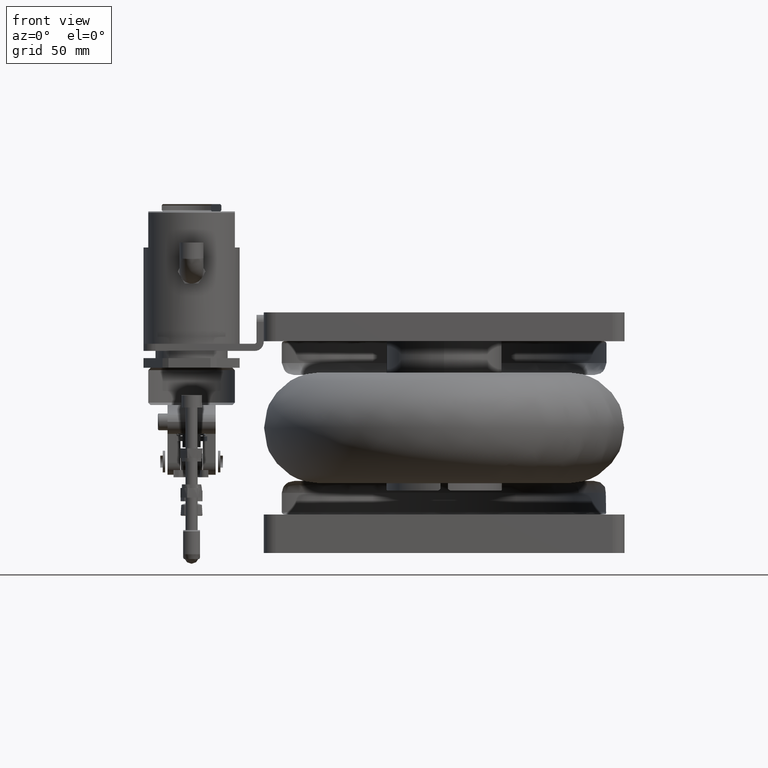
[diagram: clean part render]
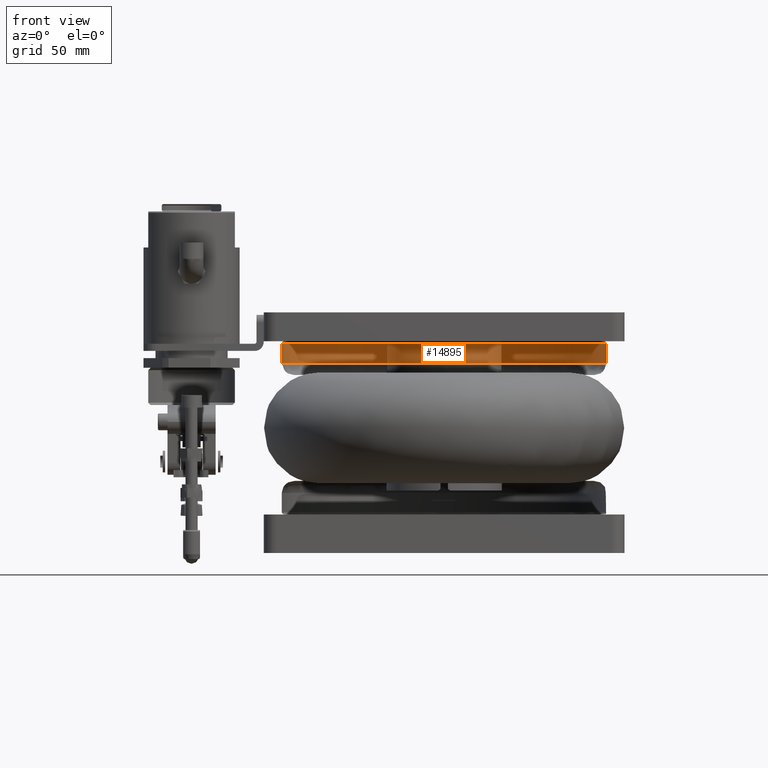
[diagram: same view with one face highlighted and labeled with its STEP entity id]
A machine part, front view. The second image highlights one B-rep face of the part: STEP entity #14895.
In plain terms, the highlighted cylindrical surface (bore or boss wall) has radius 67.5 mm, axis along (0, 0, 1).
Its self-contained STEP definition (entity closure, byte-faithful):
#44 = DIRECTION ( 'NONE',  ( 1.000000000000000000, 0.000000000000000000, 0.000000000000000000 ) ) ;
#663 = VERTEX_POINT ( 'NONE', #8989 ) ;
#2705 = EDGE_LOOP ( 'NONE', ( #20959 ) ) ;
#3044 = AXIS2_PLACEMENT_3D ( 'NONE', #23698, #12215, #44 ) ;
#3293 = EDGE_LOOP ( 'NONE', ( #11450 ) ) ;
#3714 = DIRECTION ( 'NONE',  ( 1.000000000000000000, 0.000000000000000000, 0.000000000000000000 ) ) ;
#4288 = EDGE_CURVE ( 'NONE', #663, #663, #21809, .T. ) ;
#5532 = DIRECTION ( 'NONE',  ( -0.000000000000000000, -0.000000000000000000, -1.000000000000000000 ) ) ;
#8275 = CARTESIAN_POINT ( 'NONE',  ( 195.8816013487657131, -29.93165188286331357, 206.9977288244028557 ) ) ;
#8989 = CARTESIAN_POINT ( 'NONE',  ( 154.2127330334090800, -92.29352032737527622, 198.9977288244027989 ) ) ;
#10106 = FACE_OUTER_BOUND ( 'NONE', #2705, .T. ) ;
#11450 = ORIENTED_EDGE ( 'NONE', *, *, #12820, .F. ) ;
#12215 = DIRECTION ( 'NONE',  ( 0.000000000000000000, 0.000000000000000000, 1.000000000000000000 ) ) ;
#12820 = EDGE_CURVE ( 'NONE', #16604, #16604, #22403, .T. ) ;
#13553 = AXIS2_PLACEMENT_3D ( 'NONE', #14043, #22086, #3714 ) ;
#13798 = CYLINDRICAL_SURFACE ( 'NONE', #3044, 67.49999999999997158 ) ;
#14043 = CARTESIAN_POINT ( 'NONE',  ( 128.3816013487657131, -29.93165188286331357, 206.9977288244028557 ) ) ;
#14895 = ADVANCED_FACE ( 'NONE', ( #10106, #16049 ), #13798, .F. ) ;
#15727 = CARTESIAN_POINT ( 'NONE',  ( 128.3816013487657131, -29.93165188286331357, 198.9977288244027989 ) ) ;
#16049 = FACE_OUTER_BOUND ( 'NONE', #3293, .T. ) ;
#16604 = VERTEX_POINT ( 'NONE', #8275 ) ;
#17837 = DIRECTION ( 'NONE',  ( 0.3826834323650865621, -0.9238795325112880708, 0.000000000000000000 ) ) ;
#20959 = ORIENTED_EDGE ( 'NONE', *, *, #4288, .T. ) ;
#21809 = CIRCLE ( 'NONE', #23081, 67.50000000000001421 ) ;
#22086 = DIRECTION ( 'NONE',  ( -0.000000000000000000, -0.000000000000000000, -1.000000000000000000 ) ) ;
#22403 = CIRCLE ( 'NONE', #13553, 67.49999999999997158 ) ;
#23081 = AXIS2_PLACEMENT_3D ( 'NONE', #15727, #5532, #17837 ) ;
#23698 = CARTESIAN_POINT ( 'NONE',  ( 128.3816013487657131, -29.93165188286331357, 207.9977288244028557 ) ) ;